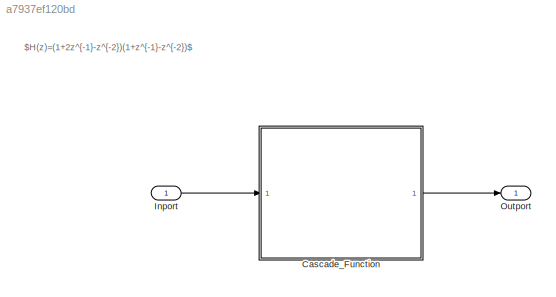
MODEL slx_a7937ef120bd
KIND model
CONFIG AbsTol = auto
CONFIG EnableMultiTasking = off
CONFIG FixedStep = auto
CONFIG MaxStep = auto
CONFIG MinStep = auto
CONFIG RelTol = 1e-3
CONFIG SampleTimeConstraint = Unconstrained
CONFIG Solver = VariableStepAuto
CONFIG SolverName = VariableStepAuto
CONFIG StartTime = 0.0
CONFIG StopTime = 10.0
BLOCK [ModelReference] Cascade_Function
  ModelNameDialog = Cascade_Function
  ModelReferenceVersion = 1.4
  Ports = [1, 1]
BLOCK [Inport] Inport
BLOCK [Outport] Outport
ANNOTATION (root): $H(z)=(1+2z^{-1}-z^{-2})(1+z^{-1}-z^{-2})$
LINE Cascade_Function:1 -> Outport:1
LINE Inport:1 -> Cascade_Function:1
